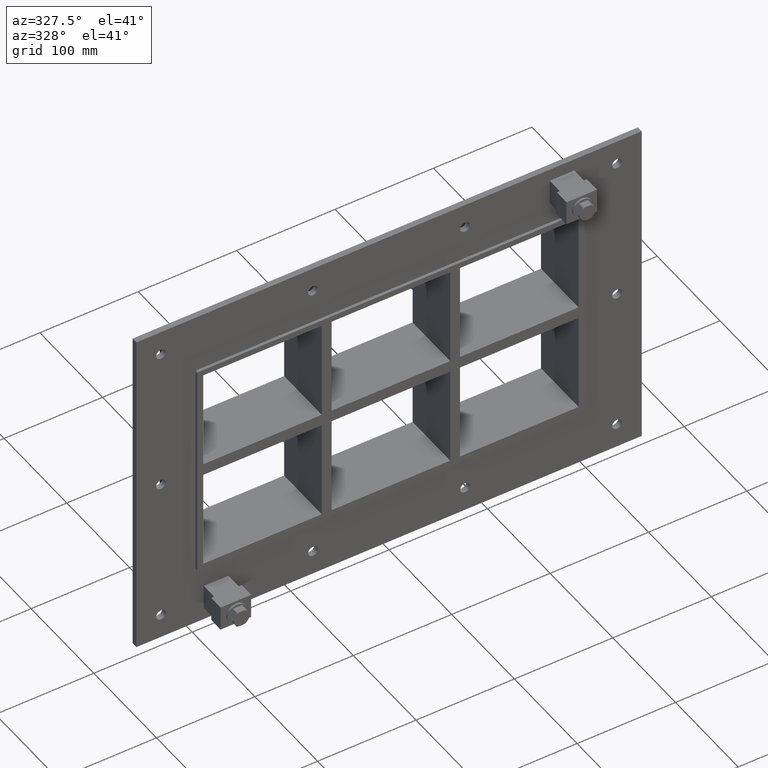
[diagram: clean part render]
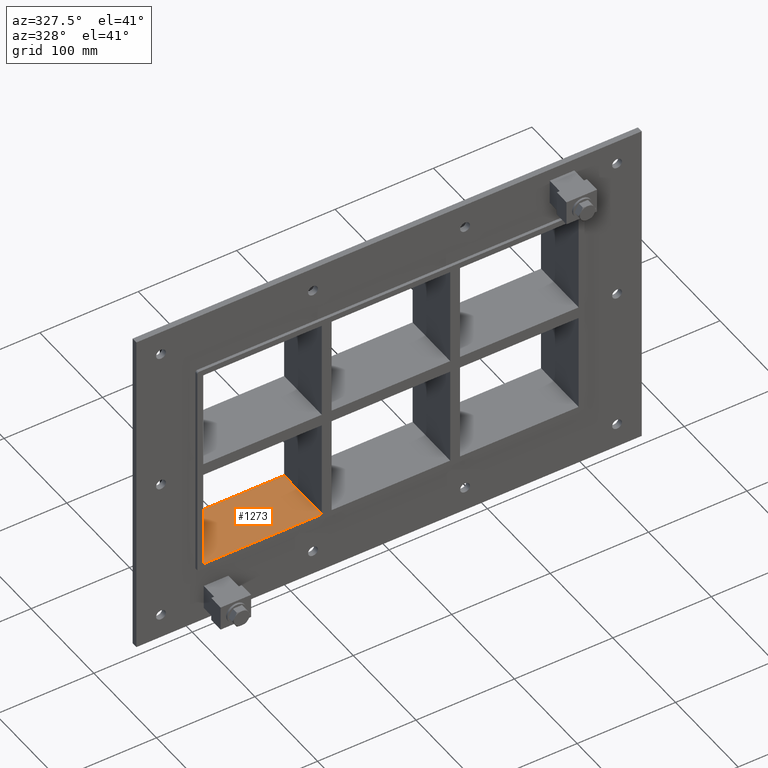
[diagram: same view with one face highlighted and labeled with its STEP entity id]
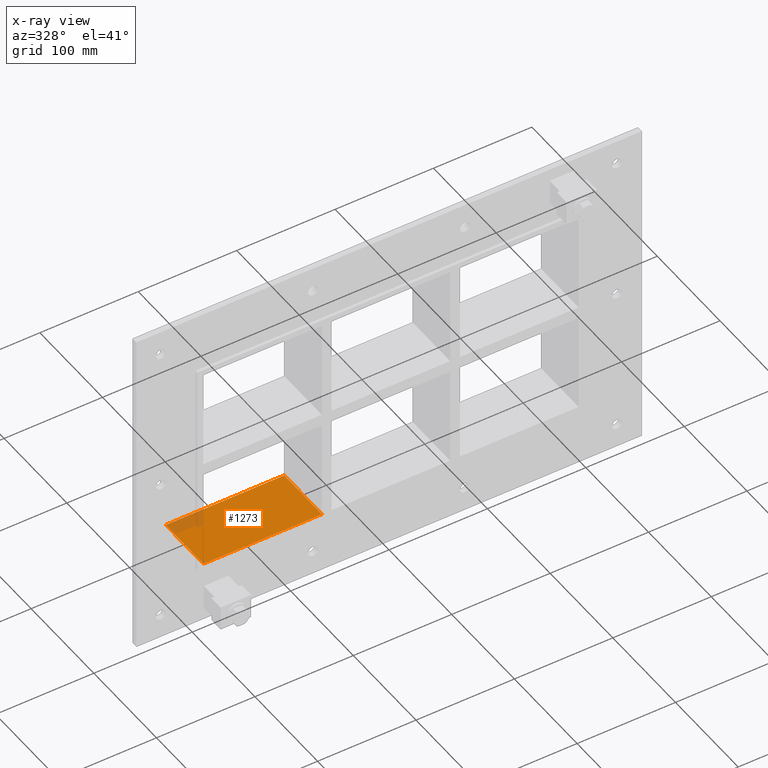
[diagram: x-ray of the same camera — body ghosted, the highlighted face saturated]
A machine part, auxiliary view. The second image highlights one B-rep face of the part: STEP entity #1273.
The next image is the same camera in x-ray: the body ghosted, the highlighted face saturated — about 7% of this face is hidden behind the body in this view.
In plain terms, the highlighted planar face has unit normal (0, 0, -1).
Its self-contained STEP definition (entity closure, byte-faithful):
#741=CARTESIAN_POINT('',(-70.250000000000341,-3.0,-107.0));
#742=VERTEX_POINT('',#741);
#749=CARTESIAN_POINT('',(-190.75000000000003,-3.0,-107.0));
#750=VERTEX_POINT('',#749);
#751=CARTESIAN_POINT('',(-70.250000000000327,-3.0,-107.00000000000003));
#752=DIRECTION('',(-1.0,0.0,0.0));
#753=VECTOR('',#752,120.49999999999973);
#754=LINE('',#751,#753);
#755=EDGE_CURVE('',#742,#750,#754,.T.);
#1155=CARTESIAN_POINT('',(-190.75000000000003,57.0,-107.0));
#1156=VERTEX_POINT('',#1155);
#1163=CARTESIAN_POINT('',(-70.250000000000341,57.0,-107.0));
#1164=VERTEX_POINT('',#1163);
#1165=CARTESIAN_POINT('',(-190.75000000000006,57.0,-107.00000000000003));
#1166=DIRECTION('',(1.0,0.0,0.0));
#1167=VECTOR('',#1166,120.49999999999973);
#1168=LINE('',#1165,#1167);
#1169=EDGE_CURVE('',#1156,#1164,#1168,.T.);
#1235=CARTESIAN_POINT('',(-70.250000000000341,-3.0,-107.00000000000003));
#1236=DIRECTION('',(0.0,1.0,0.0));
#1237=VECTOR('',#1236,60.000000000000007);
#1238=LINE('',#1235,#1237);
#1239=EDGE_CURVE('',#742,#1164,#1238,.T.);
#1257=CARTESIAN_POINT('',(190.75000000000003,0.0,-107.00000000000003));
#1258=DIRECTION('',(0.0,0.0,-1.0));
#1259=DIRECTION('',(-1.0,0.0,0.0));
#1260=AXIS2_PLACEMENT_3D('',#1257,#1258,#1259);
#1261=PLANE('',#1260);
#1262=ORIENTED_EDGE('',*,*,#1239,.T.);
#1263=ORIENTED_EDGE('',*,*,#1169,.F.);
#1264=CARTESIAN_POINT('',(-190.75000000000003,-3.0,-107.0));
#1265=DIRECTION('',(0.0,1.0,0.0));
#1266=VECTOR('',#1265,60.0);
#1267=LINE('',#1264,#1266);
#1268=EDGE_CURVE('',#750,#1156,#1267,.T.);
#1269=ORIENTED_EDGE('',*,*,#1268,.F.);
#1270=ORIENTED_EDGE('',*,*,#755,.F.);
#1271=EDGE_LOOP('',(#1262,#1263,#1269,#1270));
#1272=FACE_OUTER_BOUND('',#1271,.T.);
#1273=ADVANCED_FACE('',(#1272),#1261,.F.);